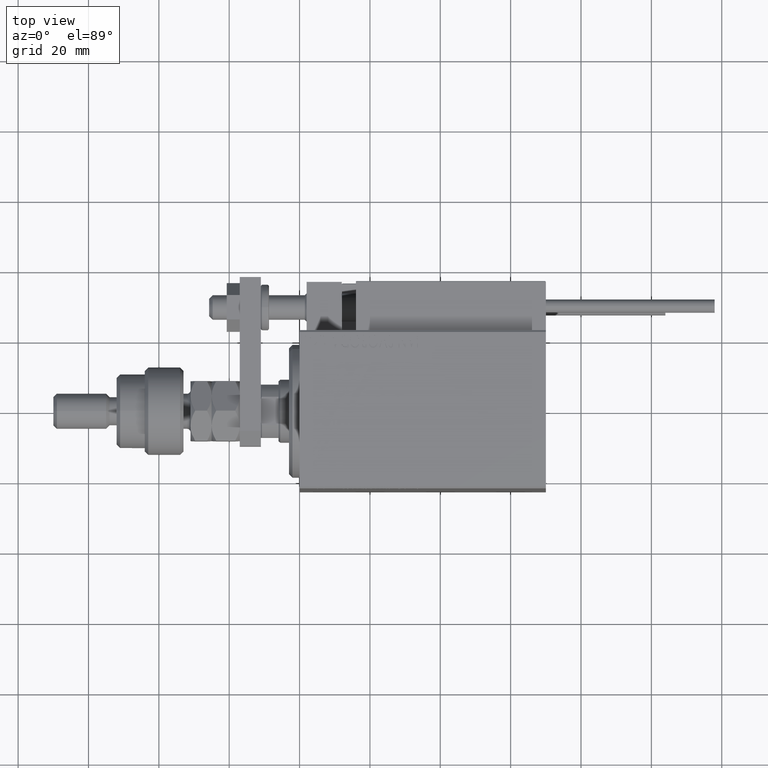
[diagram: clean part render]
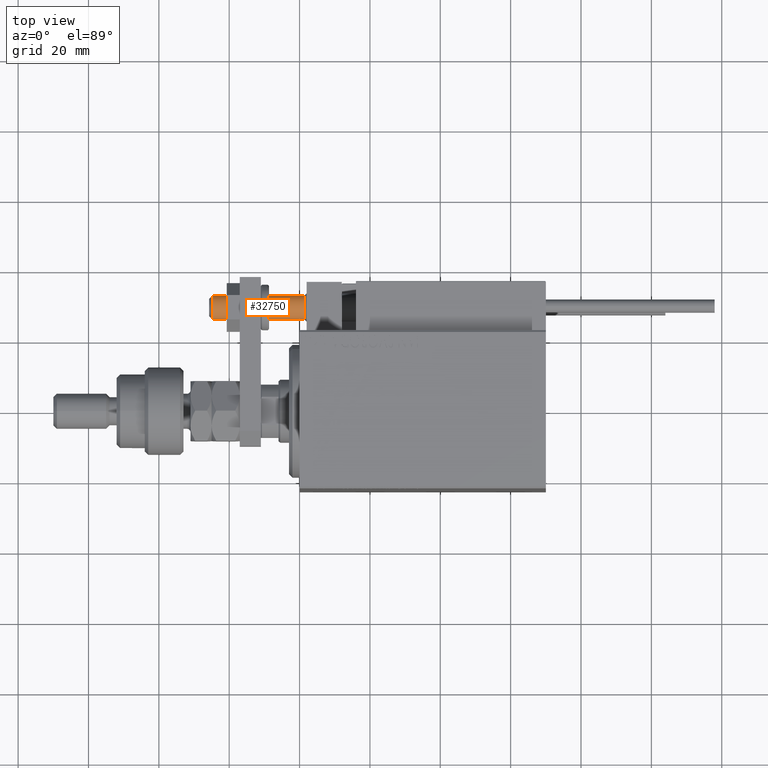
[diagram: same view with one face highlighted and labeled with its STEP entity id]
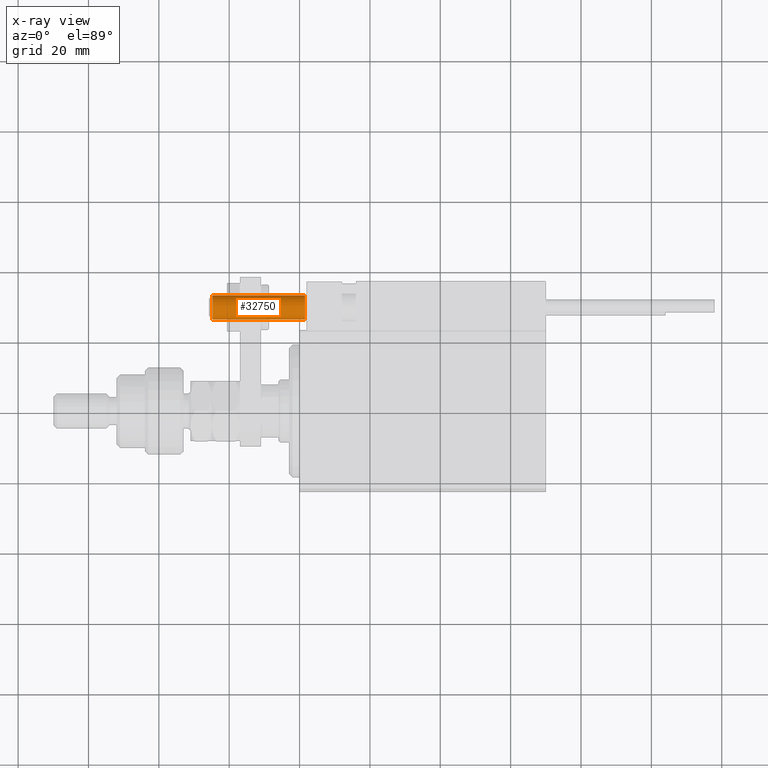
[diagram: x-ray of the same camera — body ghosted, the highlighted face saturated]
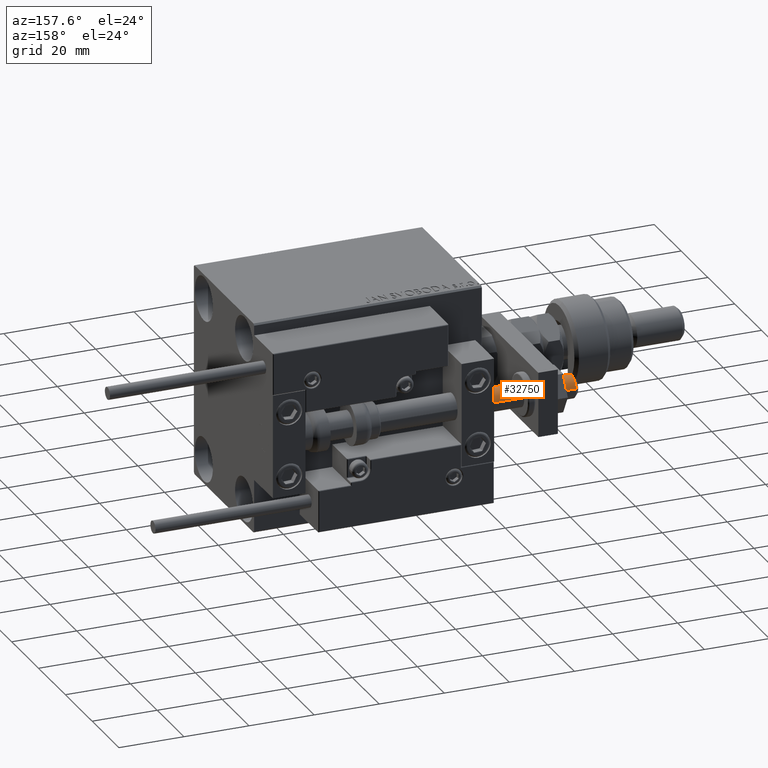
[diagram: same view with one face highlighted and labeled with its STEP entity id]
A machine part, top view. The second image highlights one B-rep face of the part: STEP entity #32750.
The next image is the same camera in x-ray: the body ghosted, the highlighted face saturated — about 0% of this face is hidden behind the body in this view.
A second angle (auxiliary view) of the same face is appended — the face is thin or edge-on in the first view.
In plain terms, the highlighted cylindrical surface (edge-blend (fillet) strip) has radius 3.5 mm, axis along (1, -0, -0).
Its self-contained STEP definition (entity closure, byte-faithful):
#793 = CARTESIAN_POINT ( 'NONE',  ( -3.500000000000000000, 4.286263797015735609E-16, 1.500000000000025535 ) ) ;
#1848 = VECTOR ( 'NONE', #19795, 1000.000000000000000 ) ;
#2838 = DIRECTION ( 'NONE',  ( 1.000000000000000000, 0.000000000000000000, 0.000000000000000000 ) ) ;
#3032 = AXIS2_PLACEMENT_3D ( 'NONE', #27518, #23224, #2838 ) ;
#3436 = CARTESIAN_POINT ( 'NONE',  ( -3.500000000000000000, 4.286263797015735609E-16, -25.69999999999999929 ) ) ;
#5241 = AXIS2_PLACEMENT_3D ( 'NONE', #22391, #47150, #18098 ) ;
#5558 = ORIENTED_EDGE ( 'NONE', *, *, #7182, .F. ) ;
#6855 = VERTEX_POINT ( 'NONE', #793 ) ;
#7182 = EDGE_CURVE ( 'NONE', #9340, #49126, #22689, .T. ) ;
#7564 = ORIENTED_EDGE ( 'NONE', *, *, #14172, .T. ) ;
#9340 = VERTEX_POINT ( 'NONE', #52696 ) ;
#12258 = DIRECTION ( 'NONE',  ( 0.000000000000000000, 0.000000000000000000, 1.000000000000000000 ) ) ;
#12389 = CIRCLE ( 'NONE', #42408, 3.500000000000000000 ) ;
#13305 = FACE_OUTER_BOUND ( 'NONE', #14436, .T. ) ;
#14172 = EDGE_CURVE ( 'NONE', #9340, #26001, #12389, .T. ) ;
#14436 = EDGE_LOOP ( 'NONE', ( #7564, #40338, #23245, #5558 ) ) ;
#15581 = EDGE_CURVE ( 'NONE', #6855, #49126, #34779, .T. ) ;
#16303 = LINE ( 'NONE', #3436, #1848 ) ;
#18098 = DIRECTION ( 'NONE',  ( 1.000000000000000000, 0.000000000000000000, 0.000000000000000000 ) ) ;
#18400 = DIRECTION ( 'NONE',  ( -0.000000000000000000, -0.000000000000000000, 1.000000000000000000 ) ) ;
#18656 = CARTESIAN_POINT ( 'NONE',  ( 3.500000000000000000, 0.000000000000000000, -25.69999999999999929 ) ) ;
#19795 = DIRECTION ( 'NONE',  ( -0.000000000000000000, -0.000000000000000000, 1.000000000000000000 ) ) ;
#22391 = CARTESIAN_POINT ( 'NONE',  ( 0.000000000000000000, 0.000000000000000000, -25.69999999999999929 ) ) ;
#22689 = LINE ( 'NONE', #18656, #23433 ) ;
#23224 = DIRECTION ( 'NONE',  ( 0.000000000000000000, 0.000000000000000000, -1.000000000000000000 ) ) ;
#23245 = ORIENTED_EDGE ( 'NONE', *, *, #15581, .T. ) ;
#23433 = VECTOR ( 'NONE', #18400, 1000.000000000000000 ) ;
#26001 = VERTEX_POINT ( 'NONE', #40340 ) ;
#27518 = CARTESIAN_POINT ( 'NONE',  ( 0.000000000000000000, 0.000000000000000000, 1.500000000000025535 ) ) ;
#28624 = DIRECTION ( 'NONE',  ( -1.000000000000000000, 0.000000000000000000, 0.000000000000000000 ) ) ;
#32750 = ADVANCED_FACE ( 'NONE', ( #13305 ), #34247, .T. ) ;
#34247 = CYLINDRICAL_SURFACE ( 'NONE', #5241, 3.500000000000000000 ) ;
#34779 = CIRCLE ( 'NONE', #3032, 3.500000000000000000 ) ;
#40338 = ORIENTED_EDGE ( 'NONE', *, *, #51953, .T. ) ;
#40340 = CARTESIAN_POINT ( 'NONE',  ( -3.500000000000000000, 4.286263797015735609E-16, -24.70000000000005969 ) ) ;
#42408 = AXIS2_PLACEMENT_3D ( 'NONE', #49083, #12258, #28624 ) ;
#47150 = DIRECTION ( 'NONE',  ( -0.000000000000000000, -0.000000000000000000, 1.000000000000000000 ) ) ;
#49083 = CARTESIAN_POINT ( 'NONE',  ( 0.000000000000000000, 0.000000000000000000, -24.70000000000005969 ) ) ;
#49126 = VERTEX_POINT ( 'NONE', #50789 ) ;
#50789 = CARTESIAN_POINT ( 'NONE',  ( 3.500000000000000000, 0.000000000000000000, 1.500000000000025535 ) ) ;
#51953 = EDGE_CURVE ( 'NONE', #26001, #6855, #16303, .T. ) ;
#52696 = CARTESIAN_POINT ( 'NONE',  ( 3.500000000000000000, 0.000000000000000000, -24.70000000000005969 ) ) ;